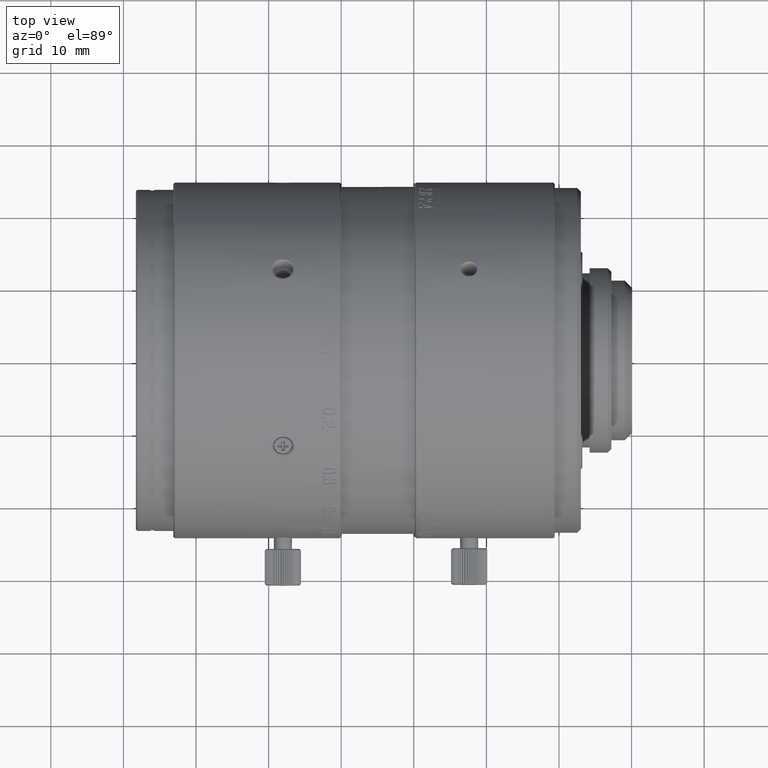
[diagram: clean part render]
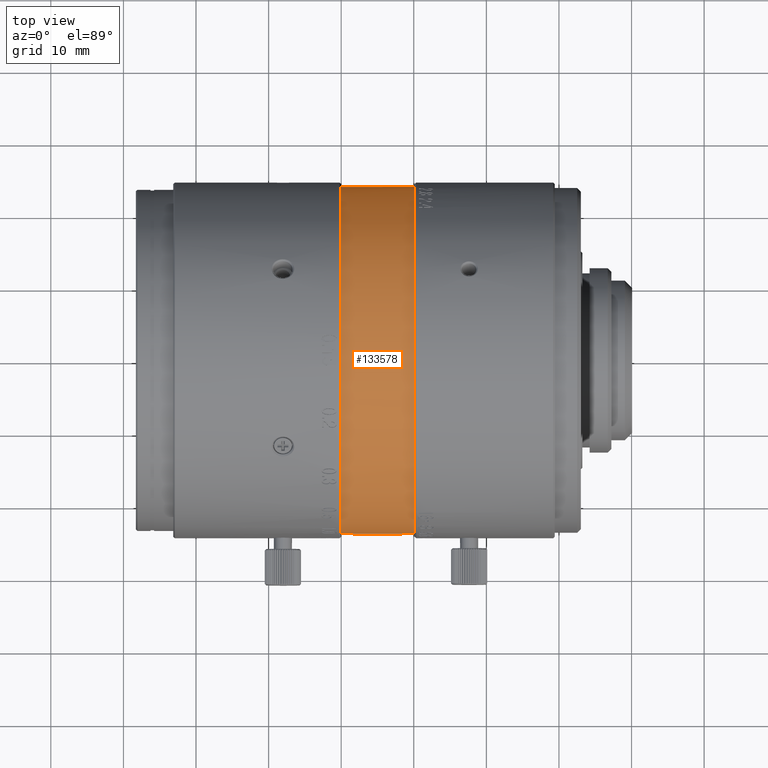
[diagram: same view with one face highlighted and labeled with its STEP entity id]
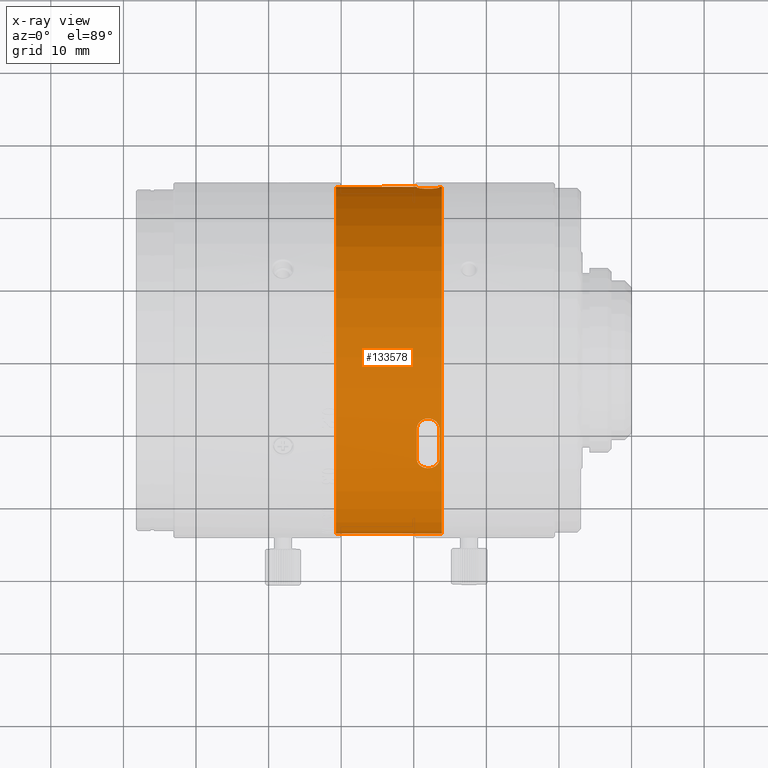
[diagram: x-ray of the same camera — body ghosted, the highlighted face saturated]
A machine part, top view. The second image highlights one B-rep face of the part: STEP entity #133578.
The next image is the same camera in x-ray: the body ghosted, the highlighted face saturated — about 0% of this face is hidden behind the body in this view.
In plain terms, the highlighted cylindrical surface (partial cylindrical patch) has radius 23.9 mm, axis along (-1, 0, 0).
Its self-contained STEP definition (entity closure, byte-faithful):
#419 = AXIS2_PLACEMENT_3D ( 'NONE', #11937, #87612, #97421 ) ;
#1655 = VERTEX_POINT ( 'NONE', #69977 ) ;
#2597 = CARTESIAN_POINT ( 'NONE',  ( -31.57879999999999754, 0.000000000000000000, 5.995204332976000819E-13 ) ) ;
#4334 = EDGE_CURVE ( 'NONE', #121461, #8268, #33794, .T. ) ;
#4707 = CARTESIAN_POINT ( 'NONE',  ( -26.12880000000000180, -23.90000000000000213, 2.002720803296999785E-09 ) ) ;
#4928 = CARTESIAN_POINT ( 'NONE',  ( -38.42880000000000251, 0.000000000000000000, 5.995204332976000819E-13 ) ) ;
#5222 = CARTESIAN_POINT ( 'NONE',  ( -29.56224604093262087, -14.17847070078748573, 19.24071026541968976 ) ) ;
#5337 = ORIENTED_EDGE ( 'NONE', *, *, #111927, .T. ) ;
#5475 = DIRECTION ( 'NONE',  ( 1.000000000000000000, 1.107025582301999956E-11, 1.886546474573000026E-13 ) ) ;
#7187 = CARTESIAN_POINT ( 'NONE',  ( -27.83592549078059974, -8.391509824171452081, 22.37820017962410546 ) ) ;
#7613 = EDGE_CURVE ( 'NONE', #123272, #114627, #61022, .T. ) ;
#7881 = CARTESIAN_POINT ( 'NONE',  ( -26.47880000017999791, -9.840227038334001364, 21.78026473291999920 ) ) ;
#8268 = VERTEX_POINT ( 'NONE', #83214 ) ;
#10099 = DIRECTION ( 'NONE',  ( 3.134843471454529126E-09, 1.000000000000000000, -2.780751199423000453E-13 ) ) ;
#10503 = EDGE_CURVE ( 'NONE', #95327, #121486, #92756, .T. ) ;
#11516 = VECTOR ( 'NONE', #80481, 1000.000000000000000 ) ;
#11541 = CARTESIAN_POINT ( 'NONE',  ( -29.57880002738000158, -1.332054153632999942E-10, 3.455803027303999804E-11 ) ) ;
#11937 = CARTESIAN_POINT ( 'NONE',  ( -33.42880000000000251, 0.000000000000000000, 5.995204332976000819E-13 ) ) ;
#12346 = CARTESIAN_POINT ( 'NONE',  ( -31.57879999999999754, -23.90000000000000213, 0.000000000000000000 ) ) ;
#12796 = CARTESIAN_POINT ( 'NONE',  ( -28.23099850804422317, 23.57607127009532277, 3.920522098833588043 ) ) ;
#13752 = ORIENTED_EDGE ( 'NONE', *, *, #63040, .T. ) ;
#14164 = CARTESIAN_POINT ( 'NONE',  ( -28.96412876010260717, 23.62356127005867279, 3.626060952107648117 ) ) ;
#14846 = CARTESIAN_POINT ( 'NONE',  ( -26.47875988883000176, 23.78236178041000315, 2.367984408047000500 ) ) ;
#15183 = EDGE_CURVE ( 'NONE', #72163, #39856, #102169, .T. ) ;
#15437 = CARTESIAN_POINT ( 'NONE',  ( -38.42880000000000251, -23.89916316527000006, 0.2000000000000000111 ) ) ;
#15448 = VERTEX_POINT ( 'NONE', #7881 ) ;
#16142 = DIRECTION ( 'NONE',  ( -1.580002981068496248E-09, -0.5833528194785777554, 0.8122188670588696979 ) ) ;
#16472 = DIRECTION ( 'NONE',  ( 1.000000000000000000, -2.574430202029000212E-14, 2.089515494975000202E-10 ) ) ;
#16633 = AXIS2_PLACEMENT_3D ( 'NONE', #22319, #65040, #108533 ) ;
#16761 = EDGE_CURVE ( 'NONE', #24584, #29863, #88657, .T. ) ;
#17104 = CARTESIAN_POINT ( 'NONE',  ( -28.23099850804611322, -15.18330736876139042, 18.45721559191891714 ) ) ;
#17666 = CARTESIAN_POINT ( 'NONE',  ( -27.45197691831559439, -8.484180222432375018, 22.34337728008219770 ) ) ;
#18321 = DIRECTION ( 'NONE',  ( 0.000000000000000000, -0.9999649859943872121, 0.008368200836795893979 ) ) ;
#18355 = CARTESIAN_POINT ( 'NONE',  ( -28.23155090977996551, -8.392700870604691943, 22.37775546596826359 ) ) ;
#18477 = EDGE_CURVE ( 'NONE', #102676, #44629, #32262, .T. ) ;
#18800 = CARTESIAN_POINT ( 'NONE',  ( -29.57879999997999931, 23.89916316528999829, 0.1999999999998000044 ) ) ;
#19282 = ORIENTED_EDGE ( 'NONE', *, *, #7613, .T. ) ;
#19862 = ORIENTED_EDGE ( 'NONE', *, *, #78460, .F. ) ;
#21477 = DIRECTION ( 'NONE',  ( 1.000000000000000000, 3.907985046677999909E-13, -2.937241114223999726E-09 ) ) ;
#22319 = CARTESIAN_POINT ( 'NONE',  ( -31.57879999999999754, 0.000000000000000000, 5.995204332976000819E-13 ) ) ;
#22794 = CARTESIAN_POINT ( 'NONE',  ( -29.57879999999999754, -23.89916316527000006, 0.2000000000000000111 ) ) ;
#23517 = CARTESIAN_POINT ( 'NONE',  ( -29.57884427927000104, -9.840430533167999982, 21.78012418704999931 ) ) ;
#23989 = CARTESIAN_POINT ( 'NONE',  ( -29.56224604092141561, 23.75217922709546059, 2.658560680953427457 ) ) ;
#24113 = EDGE_LOOP ( 'NONE', ( #19862, #56657, #124631, #57899 ) ) ;
#24584 = VERTEX_POINT ( 'NONE', #118283 ) ;
#24656 = CARTESIAN_POINT ( 'NONE',  ( -40.72879999999999967, -23.90000000000000213, 2.002740092834000024E-09 ) ) ;
#24712 = CARTESIAN_POINT ( 'NONE',  ( -26.47879999967999964, 23.89999999998000035, 0.000000000000000000 ) ) ;
#26921 = CARTESIAN_POINT ( 'NONE',  ( -29.57880000012999844, -13.94213238548999989, 19.41203092264999697 ) ) ;
#27100 = VECTOR ( 'NONE', #21477, 1000.000000000000000 ) ;
#28870 = CARTESIAN_POINT ( 'NONE',  ( -27.10498828505420832, -8.664405682391860708, 22.27437022671363565 ) ) ;
#29863 = VERTEX_POINT ( 'NONE', #114169 ) ;
#30930 = VERTEX_POINT ( 'NONE', #23517 ) ;
#31942 = AXIS2_PLACEMENT_3D ( 'NONE', #72988, #93324, #18321 ) ;
#32262 = CIRCLE ( 'NONE', #101710, 23.89999999999999503 ) ;
#32864 = B_SPLINE_CURVE_WITH_KNOTS ( 'NONE', 3,
 ( #69558, #38719, #135468, #70945, #103882, #28870, #17666, #7187, #18355, #61791, #134069, #101812, #38019, #82183, #124916, #112338 ),
 .UNSPECIFIED., .F., .F.,
 ( 4, 1, 1, 1, 1, 1, 1, 1, 1, 1, 1, 1, 1, 4 ),
 ( 0.000000000000000000, 0.05626809294340783668, 0.1371401271483136397, 0.2180121613532394753, 0.2988841955581652554, 0.3797562297629910599, 0.4606282639680168711, 0.5415002981728427311, 0.6223723323776685357, 0.7032443665827943224, 0.7841164007877202691, 0.8649884349924459315, 0.9458604691974717982, 1.000000000000000000 ),
 .UNSPECIFIED. ) ;
#33407 = DIRECTION ( 'NONE',  ( 0.000000000000000000, -1.000000000000000000, 7.036616385122000632E-11 ) ) ;
#33794 = CIRCLE ( 'NONE', #80818, 23.90000000043999862 ) ;
#33807 = CARTESIAN_POINT ( 'NONE',  ( -29.46588031749034187, 23.71251678841172605, 2.994180086901234716 ) ) ;
#34072 = CARTESIAN_POINT ( 'NONE',  ( -40.72879999999999967, -23.90000000000000213, 2.002740092834000024E-09 ) ) ;
#35692 = CARTESIAN_POINT ( 'NONE',  ( -31.57879999999999754, 23.90000000000000213, 0.000000000000000000 ) ) ;
#35881 = DIRECTION ( 'NONE',  ( -1.000000000000000000, 0.000000000000000000, -1.071723507903000050E-10 ) ) ;
#37169 = DIRECTION ( 'NONE',  ( -1.000000000000000000, 8.711165268485989652E-10, -1.319637752737326050E-09 ) ) ;
#37970 = EDGE_CURVE ( 'NONE', #15448, #126374, #53746, .T. ) ;
#38019 = CARTESIAN_POINT ( 'NONE',  ( -29.45607563908182769, -9.243202303176978774, 22.04110126719343299 ) ) ;
#38526 = VECTOR ( 'NONE', #42824, 1000.000000000000000 ) ;
#38719 = CARTESIAN_POINT ( 'NONE',  ( -26.47864096939802891, -9.756752511959447816, 21.81784701474306942 ) ) ;
#38893 = DIRECTION ( 'NONE',  ( 0.000000000000000000, -1.000000000000000000, 7.048247992005000373E-11 ) ) ;
#39504 = CARTESIAN_POINT ( 'NONE',  ( -29.25737205318494460, -14.72774154658630508, 18.82365008186449984 ) ) ;
#39618 = DIRECTION ( 'NONE',  ( -1.000000000000000000, 0.000000000000000000, 0.000000000000000000 ) ) ;
#39856 = VERTEX_POINT ( 'NONE', #18800 ) ;
#39988 = VERTEX_POINT ( 'NONE', #117592 ) ;
#40405 = EDGE_CURVE ( 'NONE', #102676, #29863, #43312, .T. ) ;
#41627 = CARTESIAN_POINT ( 'NONE',  ( -26.47880007459999874, -4.600015805581000216E-10, 6.648611466446000808E-12 ) ) ;
#42824 = DIRECTION ( 'NONE',  ( -1.000000000000000000, -1.628766962835000150E-10, 2.801785936838000167E-09 ) ) ;
#43312 = LINE ( 'NONE', #116936, #58443 ) ;
#44115 = DIRECTION ( 'NONE',  ( -7.880210024842530695E-10, -0.4117249806811060786, 0.9113081478200131258 ) ) ;
#44629 = VERTEX_POINT ( 'NONE', #135335 ) ;
#46007 = DIRECTION ( 'NONE',  ( 0.000000000000000000, 0.9999649859943872121, 0.008368200836794901717 ) ) ;
#46380 = EDGE_CURVE ( 'NONE', #116907, #8268, #96418, .T. ) ;
#46809 = AXIS2_PLACEMENT_3D ( 'NONE', #11541, #97731, #106180 ) ;
#47903 = CARTESIAN_POINT ( 'NONE',  ( -38.42880000000000251, -23.90000000000000213, -6.668603536747000637E-14 ) ) ;
#47935 = CARTESIAN_POINT ( 'NONE',  ( -28.61390584286376182, -15.10537478424265601, 18.52122920507636650 ) ) ;
#47950 = AXIS2_PLACEMENT_3D ( 'NONE', #2597, #69095, #46007 ) ;
#48693 = CARTESIAN_POINT ( 'NONE',  ( -26.12879999998999736, 0.000000000000000000, -2.169819879313000156E-12 ) ) ;
#48705 = ORIENTED_EDGE ( 'NONE', *, *, #127211, .T. ) ;
#49296 = CARTESIAN_POINT ( 'NONE',  ( -26.80693135620485279, -14.73440421449849502, 18.81842486009806592 ) ) ;
#49340 = LINE ( 'NONE', #71092, #127991 ) ;
#49685 = ORIENTED_EDGE ( 'NONE', *, *, #18477, .T. ) ;
#50396 = CARTESIAN_POINT ( 'NONE',  ( -26.47879999972999698, -13.94213128554999948, 19.41203171280000106 ) ) ;
#51511 = VECTOR ( 'NONE', #113093, 1000.000000000000000 ) ;
#53369 = EDGE_LOOP ( 'NONE', ( #117202, #120626, #77010, #54832, #113456, #49685, #105174, #86395, #87761, #19282, #135295, #48705, #13752, #53711, #55270, #137624, #81404, #5337 ) ) ;
#53711 = ORIENTED_EDGE ( 'NONE', *, *, #4334, .T. ) ;
#53746 = CIRCLE ( 'NONE', #134359, 23.89999999964999589 ) ;
#54398 = CARTESIAN_POINT ( 'NONE',  ( -40.72879999999000233, 0.000000000000000000, 5.995204332976000819E-13 ) ) ;
#54402 = EDGE_CURVE ( 'NONE', #116907, #39856, #105080, .T. ) ;
#54475 = DIRECTION ( 'NONE',  ( -1.000000000000000000, 0.000000000000000000, 0.000000000000000000 ) ) ;
#54600 = CARTESIAN_POINT ( 'NONE',  ( -26.47879998134999724, -2.019184876910999907E-10, 3.440057263292000068E-10 ) ) ;
#54832 = ORIENTED_EDGE ( 'NONE', *, *, #16761, .T. ) ;
#55270 = ORIENTED_EDGE ( 'NONE', *, *, #46380, .F. ) ;
#55480 = CARTESIAN_POINT ( 'NONE',  ( -27.45362665025842475, 23.59189834518037543, 3.824964505975667617 ) ) ;
#56417 = CARTESIAN_POINT ( 'NONE',  ( -29.57879999967000373, 23.78237811108000344, 2.368225367377000179 ) ) ;
#56657 = ORIENTED_EDGE ( 'NONE', *, *, #102612, .T. ) ;
#57899 = ORIENTED_EDGE ( 'NONE', *, *, #37970, .T. ) ;
#57948 = EDGE_CURVE ( 'NONE', #137195, #39988, #67434, .T. ) ;
#58443 = VECTOR ( 'NONE', #54475, 1000.000000000000000 ) ;
#58837 = DIRECTION ( 'NONE',  ( 0.000000000000000000, -0.9999649859943872121, 0.008368200836794901717 ) ) ;
#59125 = CARTESIAN_POINT ( 'NONE',  ( -26.47879999972999698, -13.94213128554999948, 19.41203171280000106 ) ) ;
#61022 = CIRCLE ( 'NONE', #31942, 23.89999999999999503 ) ;
#61791 = CARTESIAN_POINT ( 'NONE',  ( -28.61481664301376782, -8.487653578768515672, 22.34206334397055826 ) ) ;
#63040 = EDGE_CURVE ( 'NONE', #1655, #121461, #126280, .T. ) ;
#65040 = DIRECTION ( 'NONE',  ( -1.000000000000000000, 0.000000000000000000, 0.000000000000000000 ) ) ;
#66023 = CARTESIAN_POINT ( 'NONE',  ( -29.25737205316473677, 23.66562993612980748, 3.342773278772422252 ) ) ;
#67434 = CIRCLE ( 'NONE', #114375, 23.90000000000000213 ) ;
#68086 = CARTESIAN_POINT ( 'NONE',  ( -27.10209453949165237, 23.62257854784829902, 3.632406010072476210 ) ) ;
#69095 = DIRECTION ( 'NONE',  ( -1.000000000000000000, 0.000000000000000000, 0.000000000000000000 ) ) ;
#69558 = CARTESIAN_POINT ( 'NONE',  ( -26.47880000017999791, -9.840227038334001364, 21.78026473291999920 ) ) ;
#69977 = CARTESIAN_POINT ( 'NONE',  ( -26.12880000000000180, 23.90000000000000213, -9.805941050579998445E-10 ) ) ;
#70356 = CARTESIAN_POINT ( 'NONE',  ( -29.46588031750802728, -14.44929441298507378, 19.03855188298179257 ) ) ;
#70945 = CARTESIAN_POINT ( 'NONE',  ( -26.60570696028714721, -9.234737435551302553, 22.04464163779577035 ) ) ;
#71092 = CARTESIAN_POINT ( 'NONE',  ( -29.57879999999999754, -23.90000000000000213, 1.281837957531000084E-09 ) ) ;
#72163 = VERTEX_POINT ( 'NONE', #98925 ) ;
#72988 = CARTESIAN_POINT ( 'NONE',  ( -29.57879999999999754, 0.000000000000000000, 5.995204332976000819E-13 ) ) ;
#74744 = LINE ( 'NONE', #34072, #27100 ) ;
#75194 = VECTOR ( 'NONE', #35881, 1000.000000000000000 ) ;
#77010 = ORIENTED_EDGE ( 'NONE', *, *, #102879, .T. ) ;
#77166 = DIRECTION ( 'NONE',  ( 1.000000000000000000, 0.000000000000000000, 0.000000000000000000 ) ) ;
#77272 = LINE ( 'NONE', #131254, #75194 ) ;
#77988 = CARTESIAN_POINT ( 'NONE',  ( -31.57879999999999754, -23.89916316527000006, 0.2000000000000000111 ) ) ;
#78460 = EDGE_CURVE ( 'NONE', #108129, #126374, #102095, .T. ) ;
#79928 = CARTESIAN_POINT ( 'NONE',  ( -29.57879996237000242, 1.147916988975999809E-10, -1.536725805214999858E-10 ) ) ;
#80481 = DIRECTION ( 'NONE',  ( -1.000000000000000000, -3.286260152890999533E-13, 0.000000000000000000 ) ) ;
#80818 = AXIS2_PLACEMENT_3D ( 'NONE', #41627, #97656, #10099 ) ;
#81404 = ORIENTED_EDGE ( 'NONE', *, *, #15183, .F. ) ;
#81588 = CARTESIAN_POINT ( 'NONE',  ( -27.83719159816264721, -15.18435129611910739, 18.45635430775076458 ) ) ;
#82183 = CARTESIAN_POINT ( 'NONE',  ( -29.55985924536599185, -9.558126417171290967, 21.90613122966081860 ) ) ;
#82277 = CARTESIAN_POINT ( 'NONE',  ( -28.96412876011677540, -14.95204153524829671, 18.64557371168994138 ) ) ;
#82823 = CARTESIAN_POINT ( 'NONE',  ( -26.12880000000000180, 23.90000000000000213, -9.805941050579998445E-10 ) ) ;
#82929 = LINE ( 'NONE', #47903, #51511 ) ;
#82958 = CARTESIAN_POINT ( 'NONE',  ( -27.45362665025271909, -15.10846560335719069, 18.51870103743846130 ) ) ;
#83214 = CARTESIAN_POINT ( 'NONE',  ( -26.47875988883000176, 23.78236178041000315, 2.367984408047000500 ) ) ;
#85236 = AXIS2_PLACEMENT_3D ( 'NONE', #79928, #37169, #16142 ) ;
#85834 = EDGE_CURVE ( 'NONE', #44629, #95327, #82929, .T. ) ;
#86033 = VERTEX_POINT ( 'NONE', #35692 ) ;
#86395 = ORIENTED_EDGE ( 'NONE', *, *, #10503, .T. ) ;
#87079 = CARTESIAN_POINT ( 'NONE',  ( -29.57879999967000373, 23.78237811108000344, 2.368225367377000179 ) ) ;
#87612 = DIRECTION ( 'NONE',  ( -1.000000000000000000, 0.000000000000000000, 0.000000000000000000 ) ) ;
#87761 = ORIENTED_EDGE ( 'NONE', *, *, #90948, .F. ) ;
#87779 = CARTESIAN_POINT ( 'NONE',  ( -26.80693135622257728, 23.66443609528218772, 3.351155929318901272 ) ) ;
#88657 = CIRCLE ( 'NONE', #122269, 23.90000000000000213 ) ;
#88926 = CARTESIAN_POINT ( 'NONE',  ( -29.57879999999999754, -23.90000000000000213, 1.281837957531000084E-09 ) ) ;
#90948 = EDGE_CURVE ( 'NONE', #123272, #121486, #93045, .T. ) ;
#91067 = VECTOR ( 'NONE', #5475, 1000.000000000000000 ) ;
#91826 = EDGE_CURVE ( 'NONE', #114627, #123023, #49340, .T. ) ;
#92756 = CIRCLE ( 'NONE', #16633, 23.90000000000000213 ) ;
#93045 = LINE ( 'NONE', #135164, #11516 ) ;
#93324 = DIRECTION ( 'NONE',  ( 1.000000000000000000, 0.000000000000000000, 0.000000000000000000 ) ) ;
#93558 = CARTESIAN_POINT ( 'NONE',  ( -40.42880000000000251, 0.000000000000000000, 5.995204332976000819E-13 ) ) ;
#95327 = VERTEX_POINT ( 'NONE', #12346 ) ;
#95797 = DIRECTION ( 'NONE',  ( -1.000000000000000000, 0.000000000000000000, 0.000000000000000000 ) ) ;
#96418 = B_SPLINE_CURVE_WITH_KNOTS ( 'NONE', 3,
 ( #87079, #131924, #23989, #33807, #66023, #14164, #108811, #12796, #121378, #55480, #68086, #87779, #110876, #120012, #98262, #14846 ),
 .UNSPECIFIED., .F., .F.,
 ( 4, 1, 1, 1, 1, 1, 1, 1, 1, 1, 1, 1, 1, 4 ),
 ( 0.000000000000000000, 0.05268647876627257504, 0.1338003933758778463, 0.2149143079852930960, 0.2960282225949083523, 0.3771421372045236642, 0.4582560518141389760, 0.5393699664236543123, 0.6204838810330695065, 0.7015977956426847628, 0.7827117102523000192, 0.8638256248618153554, 0.9449395394714306118, 1.000000000000000000 ),
 .UNSPECIFIED. ) ;
#97396 = DIRECTION ( 'NONE',  ( 1.000000000000000000, -3.086864116468000491E-10, 7.252509745513089601E-10 ) ) ;
#97421 = DIRECTION ( 'NONE',  ( 0.000000000000000000, -1.000000000000000000, -2.508453695805999788E-14 ) ) ;
#97656 = DIRECTION ( 'NONE',  ( 1.000000000000000000, -3.134843495841949777E-09, 1.751344805154000014E-10 ) ) ;
#97731 = DIRECTION ( 'NONE',  ( -1.000000000000000000, 1.143494140058250043E-09, 2.161971460080060041E-10 ) ) ;
#98262 = CARTESIAN_POINT ( 'NONE',  ( -26.47866151817511238, 23.77386548430022373, 2.452555840576765345 ) ) ;
#98474 = EDGE_CURVE ( 'NONE', #86033, #39988, #77272, .T. ) ;
#98925 = CARTESIAN_POINT ( 'NONE',  ( -31.57879999999999754, 23.89916316527000006, 0.2000000000000000111 ) ) ;
#100765 = CARTESIAN_POINT ( 'NONE',  ( -31.57879999999999754, 23.89916316527000006, 0.1999999999994000188 ) ) ;
#101710 = AXIS2_PLACEMENT_3D ( 'NONE', #4928, #77166, #58837 ) ;
#101812 = CARTESIAN_POINT ( 'NONE',  ( -29.24710633872323129, -8.927404324541596381, 22.17058357925286316 ) ) ;
#102095 = B_SPLINE_CURVE_WITH_KNOTS ( 'NONE', 3,
 ( #26921, #114495, #5222, #70356, #39504, #82277, #47935, #17104, #81588, #82958, #122937, #49296, #124335, #125012, #125712, #59125 ),
 .UNSPECIFIED., .F., .F.,
 ( 4, 1, 1, 1, 1, 1, 1, 1, 1, 1, 1, 1, 1, 4 ),
 ( 0.000000000000000000, 0.05268917293257967260, 0.1338072353948745463, 0.2149252978569693440, 0.2960433603191642282, 0.3771614227814590881, 0.4582794852436539168, 0.5393975477058489121, 0.6205156101681436054, 0.7016336726302384585, 0.7827517350925333739, 0.8638697975546281160, 0.9449878600169230314, 1.000000000000000000 ),
 .UNSPECIFIED. ) ;
#102169 = LINE ( 'NONE', #100765, #91067 ) ;
#102612 = EDGE_CURVE ( 'NONE', #108129, #30930, #112040, .T. ) ;
#102676 = VERTEX_POINT ( 'NONE', #15437 ) ;
#102879 = EDGE_CURVE ( 'NONE', #137195, #24584, #74744, .T. ) ;
#103882 = CARTESIAN_POINT ( 'NONE',  ( -26.81671229969142445, -8.920258667522773521, 22.17345184294831384 ) ) ;
#103957 = FACE_OUTER_BOUND ( 'NONE', #53369, .T. ) ;
#105080 = CIRCLE ( 'NONE', #46809, 23.90000000032000216 ) ;
#105174 = ORIENTED_EDGE ( 'NONE', *, *, #85834, .T. ) ;
#106180 = DIRECTION ( 'NONE',  ( 1.159289278923491365E-09, 0.9950785820458599717, 0.09908892750252600023 ) ) ;
#107407 = CARTESIAN_POINT ( 'NONE',  ( -29.57880000012999844, -13.94213238548999989, 19.41203092264999697 ) ) ;
#107943 = FACE_BOUND ( 'NONE', #24113, .T. ) ;
#108129 = VERTEX_POINT ( 'NONE', #107407 ) ;
#108533 = DIRECTION ( 'NONE',  ( 0.000000000000000000, -1.000000000000000000, -2.508453695805999788E-14 ) ) ;
#108811 = CARTESIAN_POINT ( 'NONE',  ( -28.61390584285472016, 23.59254239301962031, 3.821023694275837990 ) ) ;
#110876 = CARTESIAN_POINT ( 'NONE',  ( -26.59604679379891223, 23.71126387377796618, 3.004038475867039981 ) ) ;
#111927 = EDGE_CURVE ( 'NONE', #72163, #86033, #133051, .T. ) ;
#112040 = CIRCLE ( 'NONE', #85236, 23.90000000012001280 ) ;
#112338 = CARTESIAN_POINT ( 'NONE',  ( -29.57884427927000104, -9.840430533167999982, 21.78012418704999931 ) ) ;
#113093 = DIRECTION ( 'NONE',  ( 1.000000000000000000, 0.000000000000000000, 0.000000000000000000 ) ) ;
#113456 = ORIENTED_EDGE ( 'NONE', *, *, #40405, .F. ) ;
#114169 = CARTESIAN_POINT ( 'NONE',  ( -40.42880000000000251, -23.89916316527000006, 0.2000000000000000111 ) ) ;
#114375 = AXIS2_PLACEMENT_3D ( 'NONE', #54398, #95797, #33407 ) ;
#114495 = CARTESIAN_POINT ( 'NONE',  ( -29.57890538557718330, -14.00822806776560014, 19.36441290498648016 ) ) ;
#114627 = VERTEX_POINT ( 'NONE', #88926 ) ;
#116907 = VERTEX_POINT ( 'NONE', #56417 ) ;
#116936 = CARTESIAN_POINT ( 'NONE',  ( -38.42880000000000251, -23.89916316527000006, 0.2000000000000000111 ) ) ;
#117202 = ORIENTED_EDGE ( 'NONE', *, *, #98474, .T. ) ;
#117592 = CARTESIAN_POINT ( 'NONE',  ( -40.72879999999999967, 23.90000000000000213, -9.806261377165000116E-10 ) ) ;
#118283 = CARTESIAN_POINT ( 'NONE',  ( -40.42880000000000251, -23.90000000000000213, 0.000000000000000000 ) ) ;
#120012 = CARTESIAN_POINT ( 'NONE',  ( -26.49629399277239372, 23.75143174061491891, 2.665425427178310436 ) ) ;
#120626 = ORIENTED_EDGE ( 'NONE', *, *, #57948, .F. ) ;
#121378 = CARTESIAN_POINT ( 'NONE',  ( -27.83719159816531530, 23.57584733979602021, 3.921856808527400151 ) ) ;
#121461 = VERTEX_POINT ( 'NONE', #24712 ) ;
#121486 = VERTEX_POINT ( 'NONE', #77988 ) ;
#122269 = AXIS2_PLACEMENT_3D ( 'NONE', #93558, #39618, #137071 ) ;
#122937 = CARTESIAN_POINT ( 'NONE',  ( -27.10209453947398117, -14.95704515553465974, 18.64155012030534309 ) ) ;
#123023 = VERTEX_POINT ( 'NONE', #4707 ) ;
#123272 = VERTEX_POINT ( 'NONE', #22794 ) ;
#124335 = CARTESIAN_POINT ( 'NONE',  ( -26.59604679378554692, -14.45720557095680370, 19.03253763260569187 ) ) ;
#124631 = ORIENTED_EDGE ( 'NONE', *, *, #130201, .F. ) ;
#124916 = CARTESIAN_POINT ( 'NONE',  ( -29.57895889965563541, -9.760017909952523496, 21.81636963560634612 ) ) ;
#125012 = CARTESIAN_POINT ( 'NONE',  ( -26.49631746714993241, -14.18410628454618205, 19.23658252174838168 ) ) ;
#125712 = CARTESIAN_POINT ( 'NONE',  ( -26.47867476648569962, -14.01103842743674655, 19.36239901185097168 ) ) ;
#126280 = LINE ( 'NONE', #82823, #38526 ) ;
#126374 = VERTEX_POINT ( 'NONE', #50396 ) ;
#127012 = DIRECTION ( 'NONE',  ( -1.000000000000000000, -8.294634836233849799E-23, -1.176836406102999955E-12 ) ) ;
#127211 = EDGE_CURVE ( 'NONE', #123023, #1655, #136430, .T. ) ;
#127991 = VECTOR ( 'NONE', #16472, 1000.000000000000000 ) ;
#130201 = EDGE_CURVE ( 'NONE', #15448, #30930, #32864, .T. ) ;
#131254 = CARTESIAN_POINT ( 'NONE',  ( -31.57879999999999754, 23.90000000000000213, 0.000000000000000000 ) ) ;
#131924 = CARTESIAN_POINT ( 'NONE',  ( -29.57890538556551263, 23.77418753894198034, 2.449274916144880354 ) ) ;
#133051 = CIRCLE ( 'NONE', #47950, 23.89999999999999503 ) ;
#133578 = ADVANCED_FACE ( 'NONE', ( #103957, #107943 ), #136244, .T. ) ;
#134069 = CARTESIAN_POINT ( 'NONE',  ( -28.96054179643325099, -8.669891507641763084, 22.27224278428828796 ) ) ;
#134359 = AXIS2_PLACEMENT_3D ( 'NONE', #54600, #97396, #44115 ) ;
#135164 = CARTESIAN_POINT ( 'NONE',  ( -29.57879999999999754, -23.89916316527000006, 0.2000000000000000111 ) ) ;
#135295 = ORIENTED_EDGE ( 'NONE', *, *, #91826, .T. ) ;
#135335 = CARTESIAN_POINT ( 'NONE',  ( -38.42880000000000251, -23.90000000000000213, -6.668603536747000637E-14 ) ) ;
#135468 = CARTESIAN_POINT ( 'NONE',  ( -26.49877350080701888, -9.551893272627525633, 21.90887093255584972 ) ) ;
#136244 = CYLINDRICAL_SURFACE ( 'NONE', #419, 23.90000000000000213 ) ;
#136430 = CIRCLE ( 'NONE', #138630, 23.90000000000000213 ) ;
#137071 = DIRECTION ( 'NONE',  ( 0.000000000000000000, -1.000000000000000000, -2.508453695805999788E-14 ) ) ;
#137195 = VERTEX_POINT ( 'NONE', #24656 ) ;
#137624 = ORIENTED_EDGE ( 'NONE', *, *, #54402, .T. ) ;
#138630 = AXIS2_PLACEMENT_3D ( 'NONE', #48693, #127012, #38893 ) ;